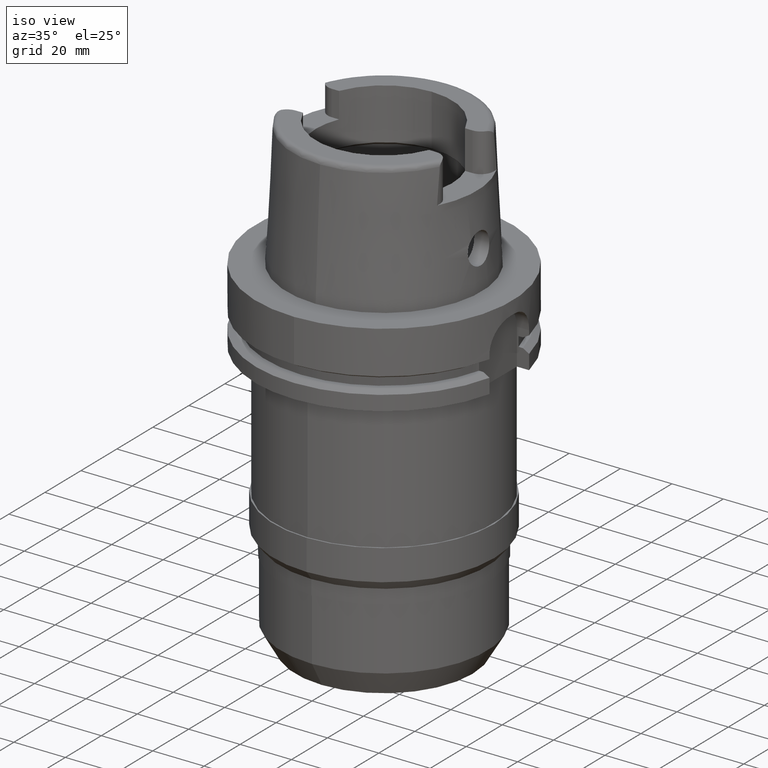
[diagram: clean part render]
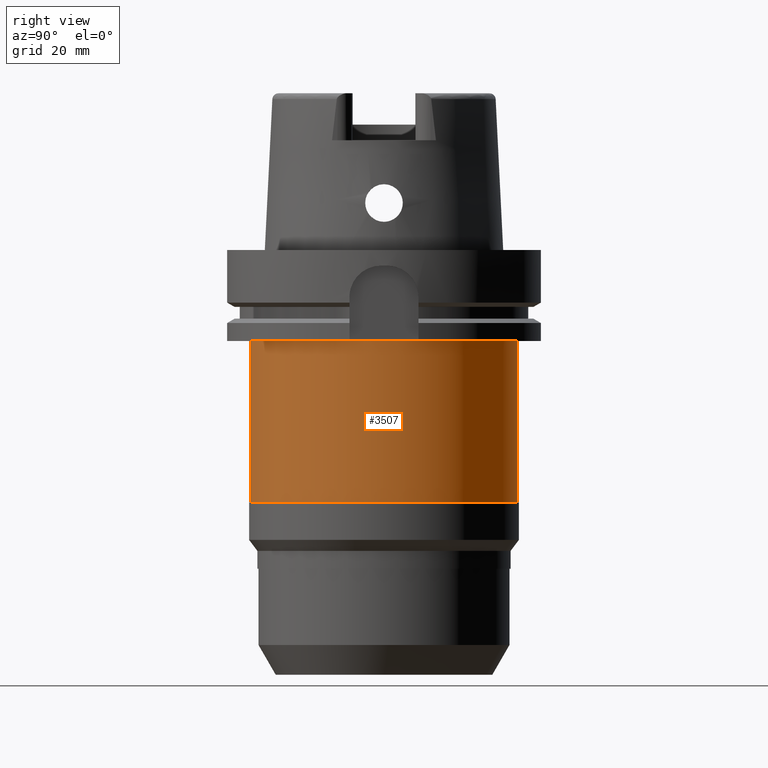
[diagram: tour spotlight — one face highlighted and labeled with its STEP entity id]
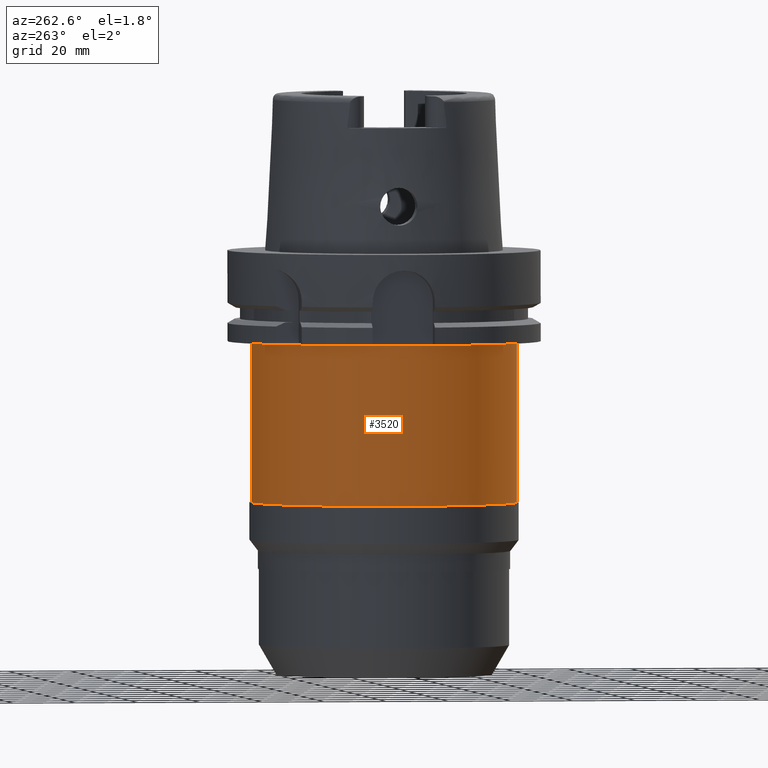
[diagram: tour spotlight — one face highlighted and labeled with its STEP entity id]
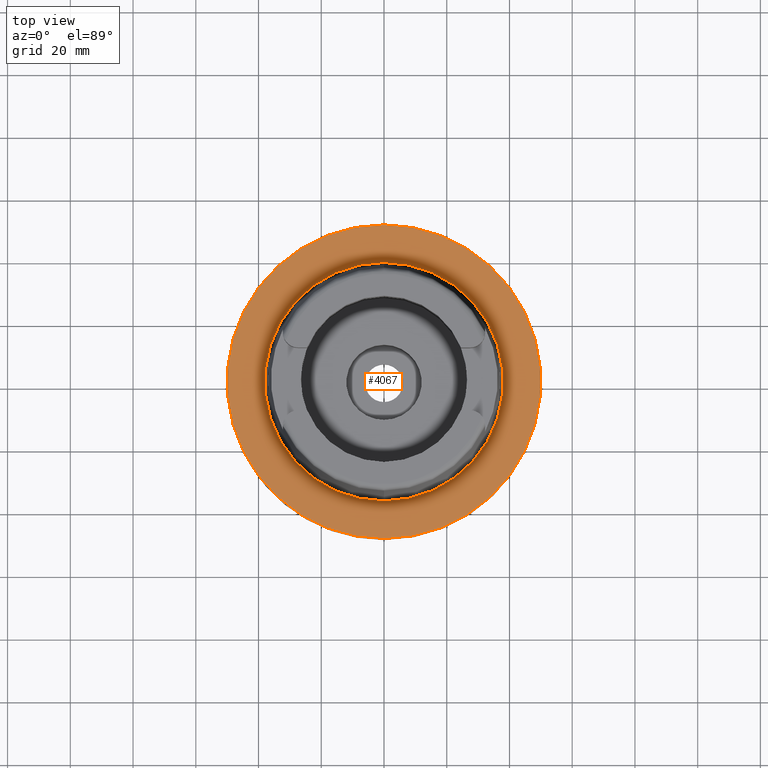
[diagram: tour spotlight — one face highlighted and labeled with its STEP entity id]
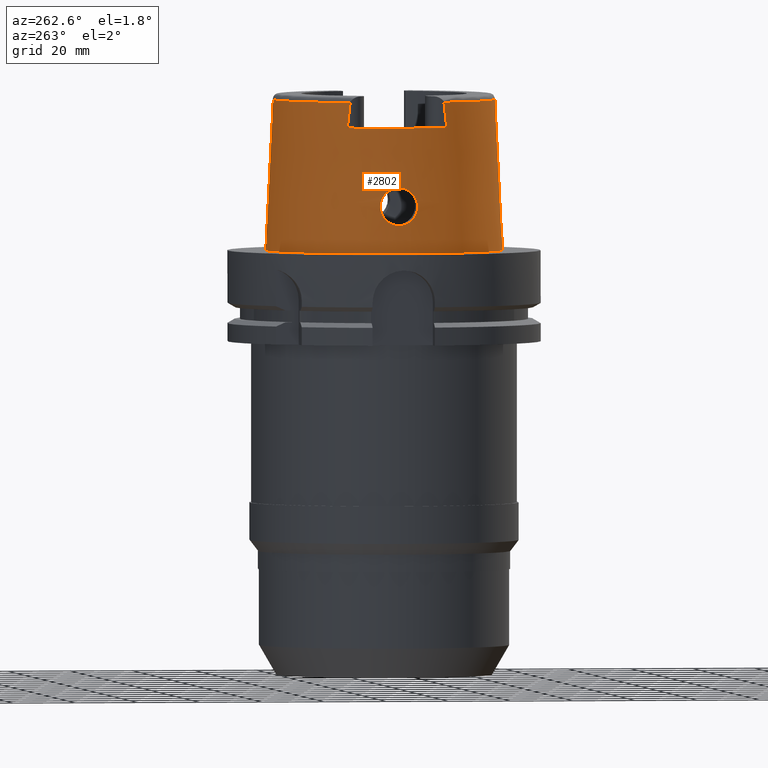
[diagram: tour spotlight — one face highlighted and labeled with its STEP entity id]
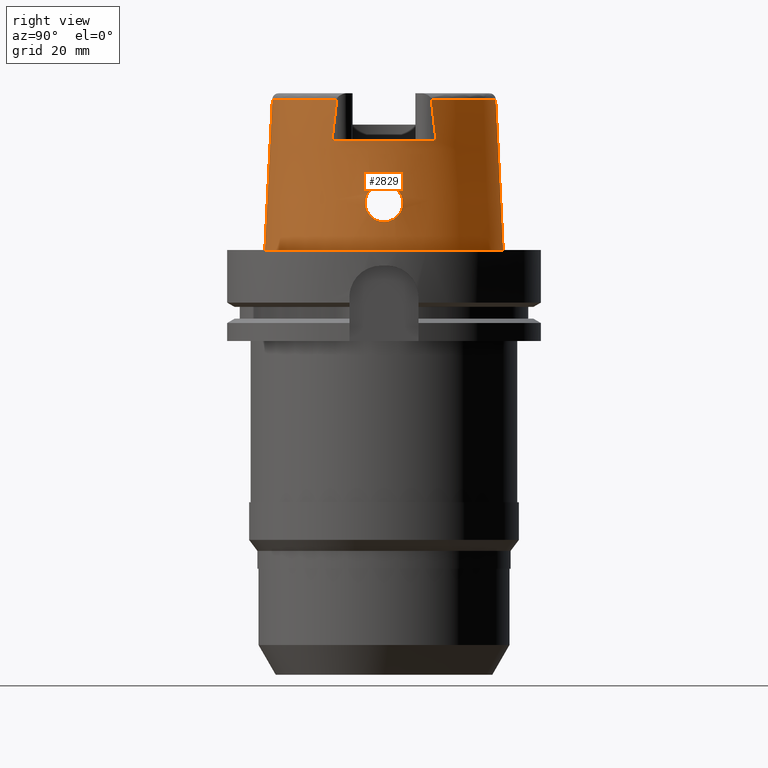
[diagram: tour spotlight — one face highlighted and labeled with its STEP entity id]
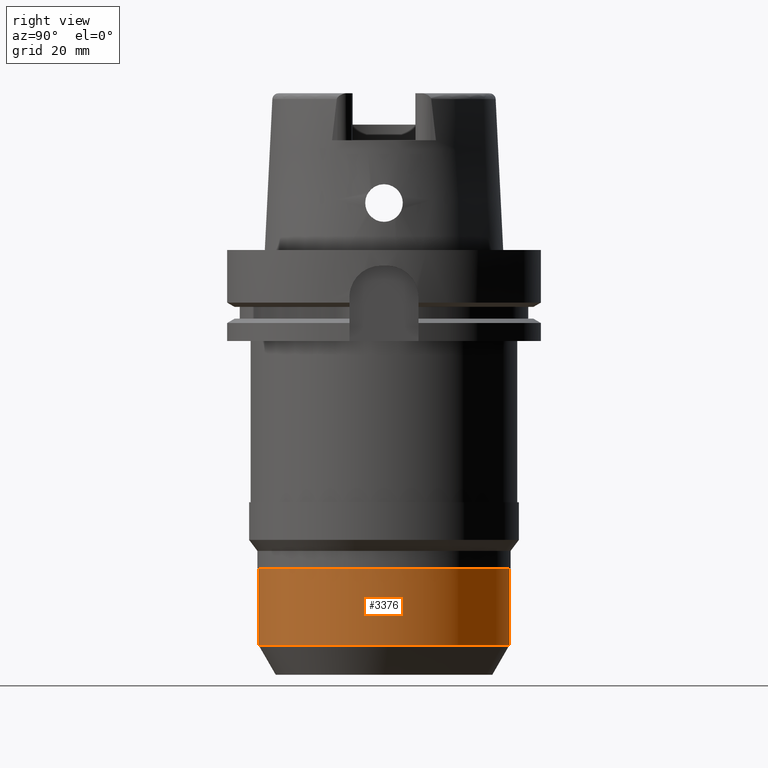
[diagram: tour spotlight — one face highlighted and labeled with its STEP entity id]
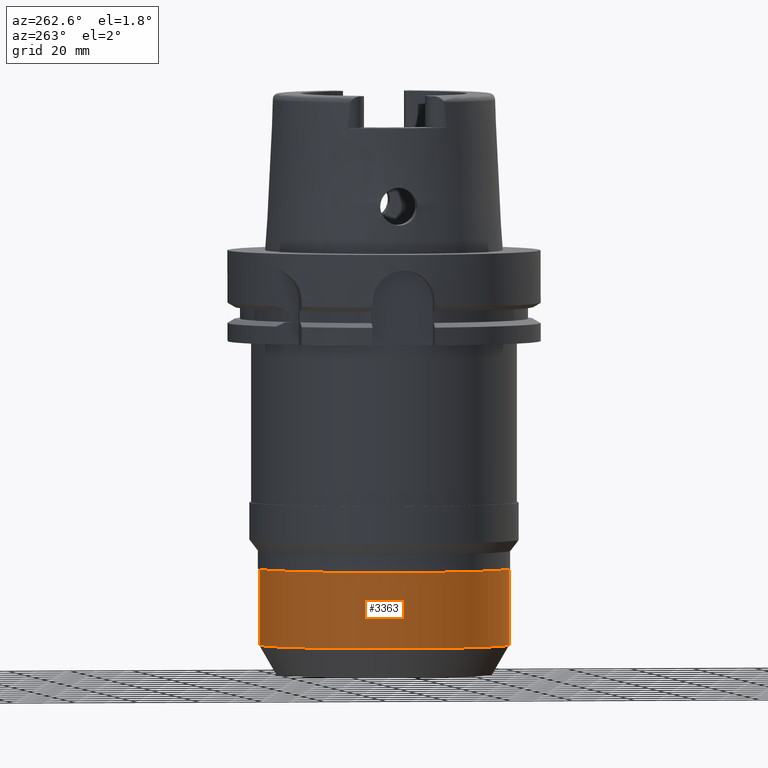
[diagram: tour spotlight — one face highlighted and labeled with its STEP entity id]
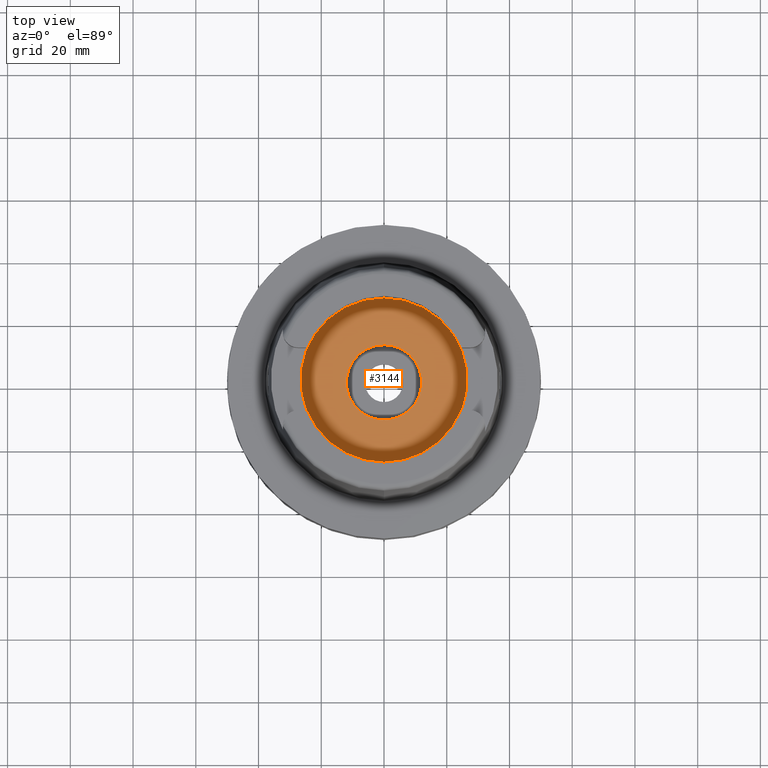
[diagram: tour spotlight — one face highlighted and labeled with its STEP entity id]
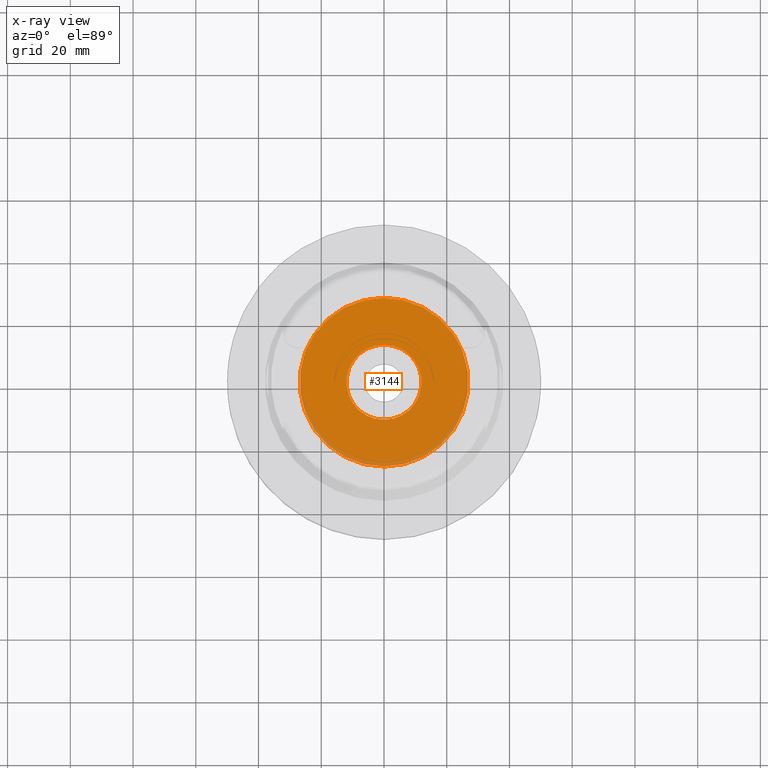
[diagram: x-ray of the same camera — body ghosted, this tour face saturated]
A machine part: a face-by-face anatomy tour. The part has 98 B-rep faces; the first image is the clean iso view, then the 8 largest visible faces are spotlighted one at a time (largest first), each with its STEP entity span.

Face 1 — right view, entity #3507. In plain terms, the highlighted cylindrical surface (partial cylindrical patch) has radius 42.5 mm, axis along (0, 0, 1).
Definition (entity closure, byte-faithful):
#1211=CARTESIAN_POINT('',(0.E0,0.E0,-8.04E1));
#1212=DIRECTION('',(0.E0,0.E0,1.E0));
#1213=DIRECTION('',(0.E0,-1.E0,0.E0));
#1214=AXIS2_PLACEMENT_3D('',#1211,#1212,#1213);
#1227=DIRECTION('',(0.E0,0.E0,-1.E0));
#1228=VECTOR('',#1227,5.14E1);
#1229=CARTESIAN_POINT('',(0.E0,4.25E1,-2.9E1));
#1230=LINE('',#1229,#1228);
#1234=DIRECTION('',(0.E0,0.E0,-1.E0));
#1235=VECTOR('',#1234,5.14E1);
#1236=CARTESIAN_POINT('',(0.E0,-4.25E1,-2.9E1));
#1237=LINE('',#1236,#1235);
#1310=CARTESIAN_POINT('',(0.E0,0.E0,-2.9E1));
#1311=DIRECTION('',(0.E0,0.E0,-1.E0));
#1312=DIRECTION('',(0.E0,1.E0,0.E0));
#1313=AXIS2_PLACEMENT_3D('',#1310,#1311,#1312);
#2442=CARTESIAN_POINT('',(0.E0,-4.25E1,-8.04E1));
#2443=CARTESIAN_POINT('',(0.E0,4.25E1,-8.04E1));
#2444=VERTEX_POINT('',#2442);
#2445=VERTEX_POINT('',#2443);
#2446=CARTESIAN_POINT('',(0.E0,4.25E1,-2.9E1));
#2447=VERTEX_POINT('',#2446);
#2448=CARTESIAN_POINT('',(0.E0,-4.25E1,-2.9E1));
#2449=VERTEX_POINT('',#2448);
#3493=CARTESIAN_POINT('',(0.E0,0.E0,-1.4467E2));
#3494=DIRECTION('',(0.E0,0.E0,1.E0));
#3495=DIRECTION('',(0.E0,1.E0,0.E0));
#3496=AXIS2_PLACEMENT_3D('',#3493,#3494,#3495);
#3497=CYLINDRICAL_SURFACE('',#3496,4.25E1);
#3499=ORIENTED_EDGE('',*,*,#3498,.T.);
#3500=ORIENTED_EDGE('',*,*,#3486,.F.);
#3502=ORIENTED_EDGE('',*,*,#3501,.F.);
#3504=ORIENTED_EDGE('',*,*,#3503,.F.);
#3505=EDGE_LOOP('',(#3499,#3500,#3502,#3504));
#3506=FACE_OUTER_BOUND('',#3505,.F.);
#1215=CIRCLE('',#1214,4.25E1);
#1314=CIRCLE('',#1313,4.25E1);
#3486=EDGE_CURVE('',#2444,#2445,#1215,.T.);
#3498=EDGE_CURVE('',#2447,#2445,#1230,.T.);
#3501=EDGE_CURVE('',#2449,#2444,#1237,.T.);
#3503=EDGE_CURVE('',#2447,#2449,#1314,.T.);
#3507=ADVANCED_FACE('',(#3506),#3497,.T.);

Face 2 — auxiliary view, entity #3520. In plain terms, the highlighted cylindrical surface (partial cylindrical patch) has radius 42.5 mm, axis along (0, 0, 1).
Definition (entity closure, byte-faithful):
#1219=CARTESIAN_POINT('',(0.E0,0.E0,-8.04E1));
#1220=DIRECTION('',(0.E0,0.E0,1.E0));
#1221=DIRECTION('',(0.E0,1.E0,0.E0));
#1222=AXIS2_PLACEMENT_3D('',#1219,#1220,#1221);
#1227=DIRECTION('',(0.E0,0.E0,-1.E0));
#1228=VECTOR('',#1227,5.14E1);
#1229=CARTESIAN_POINT('',(0.E0,4.25E1,-2.9E1));
#1230=LINE('',#1229,#1228);
#1234=DIRECTION('',(0.E0,0.E0,-1.E0));
#1235=VECTOR('',#1234,5.14E1);
#1236=CARTESIAN_POINT('',(0.E0,-4.25E1,-2.9E1));
#1237=LINE('',#1236,#1235);
#1302=CARTESIAN_POINT('',(0.E0,0.E0,-2.9E1));
#1303=DIRECTION('',(0.E0,0.E0,-1.E0));
#1304=DIRECTION('',(0.E0,-1.E0,0.E0));
#1305=AXIS2_PLACEMENT_3D('',#1302,#1303,#1304);
#2442=CARTESIAN_POINT('',(0.E0,-4.25E1,-8.04E1));
#2443=CARTESIAN_POINT('',(0.E0,4.25E1,-8.04E1));
#2444=VERTEX_POINT('',#2442);
#2445=VERTEX_POINT('',#2443);
#2446=CARTESIAN_POINT('',(0.E0,4.25E1,-2.9E1));
#2447=VERTEX_POINT('',#2446);
#2448=CARTESIAN_POINT('',(0.E0,-4.25E1,-2.9E1));
#2449=VERTEX_POINT('',#2448);
#3508=CARTESIAN_POINT('',(0.E0,0.E0,-1.4467E2));
#3509=DIRECTION('',(0.E0,0.E0,1.E0));
#3510=DIRECTION('',(0.E0,1.E0,0.E0));
#3511=AXIS2_PLACEMENT_3D('',#3508,#3509,#3510);
#3512=CYLINDRICAL_SURFACE('',#3511,4.25E1);
#3513=ORIENTED_EDGE('',*,*,#3498,.F.);
#3515=ORIENTED_EDGE('',*,*,#3514,.F.);
#3516=ORIENTED_EDGE('',*,*,#3501,.T.);
#3517=ORIENTED_EDGE('',*,*,#3488,.F.);
#3518=EDGE_LOOP('',(#3513,#3515,#3516,#3517));
#3519=FACE_OUTER_BOUND('',#3518,.F.);
#1223=CIRCLE('',#1222,4.25E1);
#1306=CIRCLE('',#1305,4.25E1);
#3488=EDGE_CURVE('',#2445,#2444,#1223,.T.);
#3498=EDGE_CURVE('',#2447,#2445,#1230,.T.);
#3501=EDGE_CURVE('',#2449,#2444,#1237,.T.);
#3514=EDGE_CURVE('',#2449,#2447,#1306,.T.);
#3520=ADVANCED_FACE('',(#3519),#3512,.T.);

Face 3 — top view, entity #4067. In plain terms, the highlighted planar face has unit normal (0, 0, 1).
Definition (entity closure, byte-faithful):
#2004=CARTESIAN_POINT('',(0.E0,0.E0,5.684341886081E-14));
#2005=DIRECTION('',(0.E0,0.E0,-1.E0));
#2006=DIRECTION('',(0.E0,-1.E0,0.E0));
#2007=AXIS2_PLACEMENT_3D('',#2004,#2005,#2006);
#2012=CARTESIAN_POINT('',(0.E0,0.E0,5.684341886081E-14));
#2013=DIRECTION('',(0.E0,0.E0,-1.E0));
#2014=DIRECTION('',(0.E0,1.E0,0.E0));
#2015=AXIS2_PLACEMENT_3D('',#2012,#2013,#2014);
#2020=CARTESIAN_POINT('',(0.E0,0.E0,1.023181539495E-12));
#2021=DIRECTION('',(0.E0,0.E0,1.E0));
#2022=DIRECTION('',(0.E0,-1.E0,0.E0));
#2023=AXIS2_PLACEMENT_3D('',#2020,#2021,#2022);
#2028=CARTESIAN_POINT('',(0.E0,0.E0,1.023181539495E-12));
#2029=DIRECTION('',(0.E0,0.E0,1.E0));
#2030=DIRECTION('',(0.E0,1.E0,0.E0));
#2031=AXIS2_PLACEMENT_3D('',#2028,#2029,#2030);
#2328=CARTESIAN_POINT('',(0.E0,-3.800001658252E1,6.821210263297E-13));
#2329=VERTEX_POINT('',#2328);
#2330=CARTESIAN_POINT('',(0.E0,3.800001658252E1,1.023181539495E-12));
#2331=VERTEX_POINT('',#2330);
#2577=CARTESIAN_POINT('',(0.E0,5.E1,3.789561257387E-14));
#2578=VERTEX_POINT('',#2577);
#2579=CARTESIAN_POINT('',(0.E0,-5.E1,5.684341886081E-14));
#2580=VERTEX_POINT('',#2579);
#4054=CARTESIAN_POINT('',(0.E0,0.E0,0.E0));
#4055=DIRECTION('',(0.E0,0.E0,1.E0));
#4056=DIRECTION('',(0.E0,1.E0,0.E0));
#4057=AXIS2_PLACEMENT_3D('',#4054,#4055,#4056);
#4058=PLANE('',#4057);
#4059=ORIENTED_EDGE('',*,*,#3819,.T.);
#4060=ORIENTED_EDGE('',*,*,#3928,.T.);
#4061=EDGE_LOOP('',(#4059,#4060));
#4062=FACE_OUTER_BOUND('',#4061,.F.);
#4063=ORIENTED_EDGE('',*,*,#2815,.T.);
#4064=ORIENTED_EDGE('',*,*,#2786,.T.);
#4065=EDGE_LOOP('',(#4063,#4064));
#4066=FACE_BOUND('',#4065,.F.);
#2008=CIRCLE('',#2007,5.E1);
#2016=CIRCLE('',#2015,5.E1);
#2024=CIRCLE('',#2023,3.800001658252E1);
#2032=CIRCLE('',#2031,3.800001658252E1);
#2786=EDGE_CURVE('',#2331,#2329,#2032,.T.);
#2815=EDGE_CURVE('',#2329,#2331,#2024,.T.);
#3819=EDGE_CURVE('',#2580,#2578,#2008,.T.);
#3928=EDGE_CURVE('',#2578,#2580,#2016,.T.);
#4067=ADVANCED_FACE('',(#4062,#4066),#4058,.T.);

Face 4 — auxiliary view, entity #2802. In plain terms, the highlighted conical surface has half-angle 2.862 deg.
Definition (entity closure, byte-faithful):
#130=CARTESIAN_POINT('',(0.E0,0.E0,4.E1));
#131=DIRECTION('',(0.E0,0.E0,-1.E0));
#132=DIRECTION('',(-8.958345712660E-1,-4.443876921391E-1,0.E0));
#133=AXIS2_PLACEMENT_3D('',#130,#131,#132);
#221=CARTESIAN_POINT('',(-3.224999491821E1,-1.506448481884E1,4.809973253239E1));
#281=CARTESIAN_POINT('',(0.E0,0.E0,4.809987853799E1));
#282=DIRECTION('',(0.E0,0.E0,-1.E0));
#283=DIRECTION('',(0.E0,-1.E0,0.E0));
#284=AXIS2_PLACEMENT_3D('',#281,#282,#283);
#289=CARTESIAN_POINT('',(-3.224999876012E1,-1.599794043148E1,4.E1));
#290=CARTESIAN_POINT('',(-3.224999876012E1,-1.589618560063E1,4.090434232027E1));
#291=CARTESIAN_POINT('',(-3.224999990104E1,-1.569149929398E1,4.271014757857E1));
#292=CARTESIAN_POINT('',(-3.225000220619E1,-1.538028254752E1,4.541006267771E1));
#293=CARTESIAN_POINT('',(-3.224999491821E1,-1.517027180891E1,4.720433975298E1));
#294=CARTESIAN_POINT('',(-3.224999491821E1,-1.506448481884E1,4.809973253239E1));
#299=DIRECTION('',(5.154182075151E-5,-4.993927430816E-2,-9.987522546783E-1));
#300=VECTOR('',#299,4.815996991514E1);
#301=CARTESIAN_POINT('',(-2.482252536761E-3,-3.559494263425E1,
4.809987853799E1));
#302=LINE('',#301,#300);
#306=CARTESIAN_POINT('',(-3.225000136841E1,1.506443227625E1,4.809991927071E1));
#307=CARTESIAN_POINT('',(-3.225000136841E1,1.517024629210E1,4.720430020500E1));
#308=CARTESIAN_POINT('',(-3.225000007421E1,1.538032523510E1,4.541024585212E1));
#309=CARTESIAN_POINT('',(-3.224999768767E1,1.569154926938E1,4.271027466542E1));
#310=CARTESIAN_POINT('',(-3.225000534596E1,1.589614940559E1,4.090439636549E1));
#311=CARTESIAN_POINT('',(-3.225000534596E1,1.599791057085E1,4.E1));
#326=DIRECTION('',(-5.154182075159E-5,4.993927430816E-2,-9.987522546783E-1));
#327=VECTOR('',#326,4.815996991514E1);
#328=CARTESIAN_POINT('',(2.482252536765E-3,3.559494263425E1,4.809987853799E1));
#329=LINE('',#328,#327);
#516=CARTESIAN_POINT('',(-3.694998175923E1,0.E0,2.1E1));
#517=CARTESIAN_POINT('',(-3.694998175923E1,-5.225398499482E-1,2.1E1));
#518=CARTESIAN_POINT('',(-3.693416250018E1,-1.569029661112E0,2.086257362447E1));
#519=CARTESIAN_POINT('',(-3.687106042448E1,-3.034938241473E0,2.025623277070E1));
#520=CARTESIAN_POINT('',(-3.679112894874E1,-4.298698066444E0,1.928508965179E1));
#521=CARTESIAN_POINT('',(-3.672630142240E1,-5.263965514425E0,1.802134447765E1));
#522=CARTESIAN_POINT('',(-3.670712147315E1,-5.866239162160E0,1.655330692640E1));
#523=CARTESIAN_POINT('',(-3.675256892539E1,-6.067444960183E0,1.499650765739E1));
#524=CARTESIAN_POINT('',(-3.686529326060E1,-5.863974189866E0,1.343852375859E1));
#525=CARTESIAN_POINT('',(-3.703208720669E1,-5.261692537727E0,1.197570377690E1));
#526=CARTESIAN_POINT('',(-3.722277666817E1,-4.297897797341E0,1.071372714411E1));
#527=CARTESIAN_POINT('',(-3.739925208220E1,-3.028308331471E0,9.739317529555E0));
#528=CARTESIAN_POINT('',(-3.752128853465E1,-1.559594032826E0,9.135204678350E0));
#529=CARTESIAN_POINT('',(-3.755000165825E1,-5.184530683877E-1,9.E0));
#530=CARTESIAN_POINT('',(-3.755000165825E1,1.432651546991E-13,9.E0));
#580=CARTESIAN_POINT('',(-3.755000165825E1,1.432651546991E-13,9.E0));
#581=CARTESIAN_POINT('',(-3.755000165825E1,5.180202103121E-1,9.E0));
#582=CARTESIAN_POINT('',(-3.752124630770E1,1.555106469823E0,9.135475008237E0));
#583=CARTESIAN_POINT('',(-3.740163330392E1,3.003590780042E0,9.727458726891E0));
#584=CARTESIAN_POINT('',(-3.722783755013E1,4.267307921474E0,1.068410697472E1));
#585=CARTESIAN_POINT('',(-3.703667279641E1,5.242673960881E0,1.194069111430E1));
#586=CARTESIAN_POINT('',(-3.686694455688E1,5.860427761543E0,1.341787128873E1));
#587=CARTESIAN_POINT('',(-3.675237396667E1,6.068846924428E0,1.499565303832E1));
#588=CARTESIAN_POINT('',(-3.670702226928E1,5.864165175203E0,1.656217598077E1));
#589=CARTESIAN_POINT('',(-3.672655763727E1,5.260521698030E0,1.802560333629E1));
#590=CARTESIAN_POINT('',(-3.679084468674E1,4.302597983396E0,1.927998324501E1));
#591=CARTESIAN_POINT('',(-3.687057612775E1,3.043782413494E0,2.025131950728E1));
#592=CARTESIAN_POINT('',(-3.693406400300E1,1.573947069146E0,2.086176170221E1));
#593=CARTESIAN_POINT('',(-3.694998175923E1,5.244482169920E-1,2.1E1));
#594=CARTESIAN_POINT('',(-3.694998175923E1,0.E0,2.1E1));
#2028=CARTESIAN_POINT('',(0.E0,0.E0,1.023181539495E-12));
#2029=DIRECTION('',(0.E0,0.E0,1.E0));
#2030=DIRECTION('',(0.E0,1.E0,0.E0));
#2031=AXIS2_PLACEMENT_3D('',#2028,#2029,#2030);
#2219=CARTESIAN_POINT('',(-3.225000136841E1,1.506443227625E1,4.809991927071E1));
#2224=CARTESIAN_POINT('',(0.E0,0.E0,4.809987853799E1));
#2225=DIRECTION('',(0.E0,0.E0,-1.E0));
#2226=DIRECTION('',(-9.060276961631E-1,4.232183996300E-1,0.E0));
#2227=AXIS2_PLACEMENT_3D('',#2224,#2225,#2226);
#2312=CARTESIAN_POINT('',(-3.224999876012E1,-1.599794043148E1,4.E1));
#2313=VERTEX_POINT('',#2312);
#2314=CARTESIAN_POINT('',(-3.224999999999E1,1.599793480981E1,4.E1));
#2315=VERTEX_POINT('',#2314);
#2317=VERTEX_POINT('',#2219);
#2318=CARTESIAN_POINT('',(0.E0,3.559494289391E1,4.809987853799E1));
#2319=VERTEX_POINT('',#2318);
#2323=VERTEX_POINT('',#221);
#2326=CARTESIAN_POINT('',(1.065814103640E-14,-3.559494289391E1,
4.809987853799E1));
#2327=VERTEX_POINT('',#2326);
#2328=CARTESIAN_POINT('',(0.E0,-3.800001658252E1,6.821210263297E-13));
#2329=VERTEX_POINT('',#2328);
#2330=CARTESIAN_POINT('',(0.E0,3.800001658252E1,1.023181539495E-12));
#2331=VERTEX_POINT('',#2330);
#2332=VERTEX_POINT('',#516);
#2333=VERTEX_POINT('',#530);
#2776=CARTESIAN_POINT('',(0.E0,0.E0,2.404993926900E1));
#2777=DIRECTION('',(0.E0,0.E0,-1.E0));
#2778=DIRECTION('',(0.E0,-1.E0,0.E0));
#2779=AXIS2_PLACEMENT_3D('',#2776,#2777,#2778);
#2780=CONICAL_SURFACE('',#2779,3.679747973821E1,2.8625E0);
#2781=ORIENTED_EDGE('',*,*,#2685,.F.);
#2782=ORIENTED_EDGE('',*,*,#2768,.T.);
#2783=ORIENTED_EDGE('',*,*,#2758,.F.);
#2785=ORIENTED_EDGE('',*,*,#2784,.T.);
#2787=ORIENTED_EDGE('',*,*,#2786,.F.);
#2789=ORIENTED_EDGE('',*,*,#2788,.F.);
#2791=ORIENTED_EDGE('',*,*,#2790,.F.);
#2793=ORIENTED_EDGE('',*,*,#2792,.T.);
#2794=EDGE_LOOP('',(#2781,#2782,#2783,#2785,#2787,#2789,#2791,#2793));
#2795=FACE_OUTER_BOUND('',#2794,.F.);
#2797=ORIENTED_EDGE('',*,*,#2796,.F.);
#2799=ORIENTED_EDGE('',*,*,#2798,.F.);
#2800=EDGE_LOOP('',(#2797,#2799));
#2801=FACE_BOUND('',#2800,.F.);
#134=CIRCLE('',#133,3.599995025244E1);
#285=CIRCLE('',#284,3.559494289391E1);
#295=B_SPLINE_CURVE_WITH_KNOTS('',3,(#289,#290,#291,#292,#293,#294),
.UNSPECIFIED.,.F.,.F.,(4,1,1,4),(0.E0,3.333333333333E-1,6.666666666667E-1,1.E0),
.UNSPECIFIED.);
#312=B_SPLINE_CURVE_WITH_KNOTS('',3,(#306,#307,#308,#309,#310,#311),
.UNSPECIFIED.,.F.,.F.,(4,1,1,4),(0.E0,3.333333333333E-1,6.666666666667E-1,1.E0),
.UNSPECIFIED.);
#531=B_SPLINE_CURVE_WITH_KNOTS('',3,(#516,#517,#518,#519,#520,#521,#522,#523,
#524,#525,#526,#527,#528,#529,#530),.UNSPECIFIED.,.F.,.F.,(4,1,1,1,1,1,1,1,1,1,
1,1,4),(0.E0,8.333333333333E-2,1.666666666667E-1,2.5E-1,3.333333333333E-1,
4.166666666667E-1,5.E-1,5.833333333333E-1,6.666666666667E-1,7.5E-1,
8.333333333333E-1,9.166666666667E-1,1.E0),.UNSPECIFIED.);
#595=B_SPLINE_CURVE_WITH_KNOTS('',3,(#580,#581,#582,#583,#584,#585,#586,#587,
#588,#589,#590,#591,#592,#593,#594),.UNSPECIFIED.,.F.,.F.,(4,1,1,1,1,1,1,1,1,1,
1,1,4),(0.E0,8.333333333333E-2,1.666666666667E-1,2.5E-1,3.333333333333E-1,
4.166666666667E-1,5.E-1,5.833333333333E-1,6.666666666667E-1,7.5E-1,
8.333333333333E-1,9.166666666667E-1,1.E0),.UNSPECIFIED.);
#2032=CIRCLE('',#2031,3.800001658252E1);
#2228=CIRCLE('',#2227,3.559494289391E1);
#2685=EDGE_CURVE('',#2313,#2315,#134,.T.);
#2758=EDGE_CURVE('',#2327,#2323,#285,.T.);
#2768=EDGE_CURVE('',#2313,#2323,#295,.T.);
#2784=EDGE_CURVE('',#2327,#2329,#302,.T.);
#2786=EDGE_CURVE('',#2331,#2329,#2032,.T.);
#2788=EDGE_CURVE('',#2319,#2331,#329,.T.);
#2790=EDGE_CURVE('',#2317,#2319,#2228,.T.);
#2792=EDGE_CURVE('',#2317,#2315,#312,.T.);
#2796=EDGE_CURVE('',#2332,#2333,#531,.T.);
#2798=EDGE_CURVE('',#2333,#2332,#595,.T.);
#2802=ADVANCED_FACE('',(#2795,#2801),#2780,.T.);

Face 5 — right view, entity #2829. In plain terms, the highlighted conical surface has half-angle 2.862 deg.
Definition (entity closure, byte-faithful):
#268=CARTESIAN_POINT('',(3.225000552017E1,-1.506439828318E1,4.810004174833E1));
#273=CARTESIAN_POINT('',(0.E0,0.E0,4.809987853799E1));
#274=DIRECTION('',(0.E0,0.E0,-1.E0));
#275=DIRECTION('',(9.060280460805E-1,-4.232176505246E-1,0.E0));
#276=AXIS2_PLACEMENT_3D('',#273,#274,#275);
#299=DIRECTION('',(5.154182075151E-5,-4.993927430816E-2,-9.987522546783E-1));
#300=VECTOR('',#299,4.815996991514E1);
#301=CARTESIAN_POINT('',(-2.482252536761E-3,-3.559494263425E1,
4.809987853799E1));
#302=LINE('',#301,#300);
#316=CARTESIAN_POINT('',(3.224999527489E1,1.655287543599E1,3.5E1));
#317=CARTESIAN_POINT('',(3.224999527489E1,1.639226210430E1,3.646677430492E1));
#318=CARTESIAN_POINT('',(3.224999958003E1,1.606837255483E1,3.939292736552E1));
#319=CARTESIAN_POINT('',(3.225000855756E1,1.557203229454E1,4.375938269618E1));
#320=CARTESIAN_POINT('',(3.224998031234E1,1.523513271605E1,4.665592204274E1));
#321=CARTESIAN_POINT('',(3.224998031234E1,1.506460259131E1,4.809931685952E1));
#326=DIRECTION('',(-5.154182075159E-5,4.993927430816E-2,-9.987522546783E-1));
#327=VECTOR('',#326,4.815996991514E1);
#328=CARTESIAN_POINT('',(2.482252536765E-3,3.559494263425E1,4.809987853799E1));
#329=LINE('',#328,#327);
#333=CARTESIAN_POINT('',(3.225000552017E1,-1.506439828318E1,4.810004174833E1));
#334=CARTESIAN_POINT('',(3.225000552017E1,-1.523503289114E1,4.665577808986E1));
#335=CARTESIAN_POINT('',(3.225000026293E1,-1.557219472918E1,4.376011578362E1));
#336=CARTESIAN_POINT('',(3.224999079948E1,-1.606856473524E1,3.939344260642E1));
#337=CARTESIAN_POINT('',(3.225002129259E1,-1.639212166417E1,3.646699412941E1));
#338=CARTESIAN_POINT('',(3.225002129259E1,-1.655276054267E1,3.5E1));
#373=CARTESIAN_POINT('',(0.E0,0.E0,3.5E1));
#374=DIRECTION('',(0.E0,0.E0,-1.E0));
#375=DIRECTION('',(8.896561898443E-1,4.566309931135E-1,0.E0));
#376=AXIS2_PLACEMENT_3D('',#373,#374,#375);
#705=CARTESIAN_POINT('',(3.755000165825E1,0.E0,9.E0));
#706=CARTESIAN_POINT('',(3.755000165825E1,-5.180213084630E-1,9.E0));
#707=CARTESIAN_POINT('',(3.752124622723E1,-1.555109018416E0,9.135475354600E0));
#708=CARTESIAN_POINT('',(3.740163271878E1,-3.003595830033E0,9.727461654073E0));
#709=CARTESIAN_POINT('',(3.722783759990E1,-4.267306971764E0,1.068410735373E1));
#710=CARTESIAN_POINT('',(3.703667271046E1,-5.242675637989E0,1.194068956731E1));
#711=CARTESIAN_POINT('',(3.686694091571E1,-5.860439360591E0,1.341790686287E1));
#712=CARTESIAN_POINT('',(3.675237178991E1,-6.068847754447E0,1.499569324434E1));
#713=CARTESIAN_POINT('',(3.670702217856E1,-5.864150509020E0,1.656222424645E1));
#714=CARTESIAN_POINT('',(3.672655814592E1,-5.260516156326E0,1.802560788772E1));
#715=CARTESIAN_POINT('',(3.679084500427E1,-4.302592843405E0,1.927998977200E1));
#716=CARTESIAN_POINT('',(3.687057671111E1,-3.043772243406E0,2.025132528789E1));
#717=CARTESIAN_POINT('',(3.693406420562E1,-1.573938661758E0,2.086176348116E1));
#718=CARTESIAN_POINT('',(3.694998175923E1,-5.244448153038E-1,2.1E1));
#719=CARTESIAN_POINT('',(3.694998175923E1,-1.394597051989E-13,2.1E1));
#756=CARTESIAN_POINT('',(3.694998175923E1,-1.394597051989E-13,2.1E1));
#757=CARTESIAN_POINT('',(3.694998175923E1,5.225434259279E-1,2.1E1));
#758=CARTESIAN_POINT('',(3.693416228278E1,1.569037724502E0,2.086257169919E1));
#759=CARTESIAN_POINT('',(3.687106004137E1,3.034944261920E0,2.025622890539E1));
#760=CARTESIAN_POINT('',(3.679112909247E1,4.298696467354E0,1.928508939272E1));
#761=CARTESIAN_POINT('',(3.672630131470E1,5.263964540677E0,1.802135073292E1));
#762=CARTESIAN_POINT('',(3.670712144943E1,5.866250313115E0,1.655327231086E1));
#763=CARTESIAN_POINT('',(3.675257056544E1,6.067445157432E0,1.499647465649E1));
#764=CARTESIAN_POINT('',(3.686529727491E1,5.863962121524E0,1.343848257416E1));
#765=CARTESIAN_POINT('',(3.703208843402E1,5.261686038850E0,1.197569681060E1));
#766=CARTESIAN_POINT('',(3.722277764996E1,4.297892469189E0,1.071372072946E1));
#767=CARTESIAN_POINT('',(3.739925323309E1,3.028297802197E0,9.739311736093E0));
#768=CARTESIAN_POINT('',(3.752128870687E1,1.559588781423E0,9.135203908409E0));
#769=CARTESIAN_POINT('',(3.755000165825E1,5.184510928059E-1,9.E0));
#770=CARTESIAN_POINT('',(3.755000165825E1,0.E0,9.E0));
#2020=CARTESIAN_POINT('',(0.E0,0.E0,1.023181539495E-12));
#2021=DIRECTION('',(0.E0,0.E0,1.E0));
#2022=DIRECTION('',(0.E0,-1.E0,0.E0));
#2023=AXIS2_PLACEMENT_3D('',#2020,#2021,#2022);
#2232=CARTESIAN_POINT('',(0.E0,0.E0,4.809987853799E1));
#2233=DIRECTION('',(0.E0,0.E0,-1.E0));
#2234=DIRECTION('',(0.E0,1.E0,0.E0));
#2235=AXIS2_PLACEMENT_3D('',#2232,#2233,#2234);
#2318=CARTESIAN_POINT('',(0.E0,3.559494289391E1,4.809987853799E1));
#2319=VERTEX_POINT('',#2318);
#2320=CARTESIAN_POINT('',(3.224994093704E1,1.506456999646E1,4.809987853799E1));
#2321=VERTEX_POINT('',#2320);
#2325=VERTEX_POINT('',#268);
#2326=CARTESIAN_POINT('',(1.065814103640E-14,-3.559494289391E1,
4.809987853799E1));
#2327=VERTEX_POINT('',#2326);
#2328=CARTESIAN_POINT('',(0.E0,-3.800001658252E1,6.821210263297E-13));
#2329=VERTEX_POINT('',#2328);
#2330=CARTESIAN_POINT('',(0.E0,3.800001658252E1,1.023181539495E-12));
#2331=VERTEX_POINT('',#2330);
#2334=CARTESIAN_POINT('',(3.225E1,1.655285457013E1,3.5E1));
#2335=CARTESIAN_POINT('',(3.225E1,-1.655285457013E1,3.5E1));
#2336=VERTEX_POINT('',#2334);
#2337=VERTEX_POINT('',#2335);
#2338=VERTEX_POINT('',#705);
#2339=VERTEX_POINT('',#719);
#2803=CARTESIAN_POINT('',(0.E0,0.E0,2.404993926900E1));
#2804=DIRECTION('',(0.E0,0.E0,-1.E0));
#2805=DIRECTION('',(0.E0,-1.E0,0.E0));
#2806=AXIS2_PLACEMENT_3D('',#2803,#2804,#2805);
#2807=CONICAL_SURFACE('',#2806,3.679747973821E1,2.8625E0);
#2809=ORIENTED_EDGE('',*,*,#2808,.F.);
#2811=ORIENTED_EDGE('',*,*,#2810,.T.);
#2813=ORIENTED_EDGE('',*,*,#2812,.F.);
#2814=ORIENTED_EDGE('',*,*,#2788,.T.);
#2816=ORIENTED_EDGE('',*,*,#2815,.F.);
#2817=ORIENTED_EDGE('',*,*,#2784,.F.);
#2818=ORIENTED_EDGE('',*,*,#2756,.F.);
#2820=ORIENTED_EDGE('',*,*,#2819,.T.);
#2821=EDGE_LOOP('',(#2809,#2811,#2813,#2814,#2816,#2817,#2818,#2820));
#2822=FACE_OUTER_BOUND('',#2821,.F.);
#2824=ORIENTED_EDGE('',*,*,#2823,.F.);
#2826=ORIENTED_EDGE('',*,*,#2825,.F.);
#2827=EDGE_LOOP('',(#2824,#2826));
#2828=FACE_BOUND('',#2827,.F.);
#277=CIRCLE('',#276,3.559494289391E1);
#322=B_SPLINE_CURVE_WITH_KNOTS('',3,(#316,#317,#318,#319,#320,#321),
.UNSPECIFIED.,.F.,.F.,(4,1,1,4),(0.E0,3.333333333333E-1,6.666666666667E-1,1.E0),
.UNSPECIFIED.);
#339=B_SPLINE_CURVE_WITH_KNOTS('',3,(#333,#334,#335,#336,#337,#338),
.UNSPECIFIED.,.F.,.F.,(4,1,1,4),(0.E0,3.333333333333E-1,6.666666666667E-1,1.E0),
.UNSPECIFIED.);
#377=CIRCLE('',#376,3.624995854370E1);
#720=B_SPLINE_CURVE_WITH_KNOTS('',3,(#705,#706,#707,#708,#709,#710,#711,#712,
#713,#714,#715,#716,#717,#718,#719),.UNSPECIFIED.,.F.,.F.,(4,1,1,1,1,1,1,1,1,1,
1,1,4),(0.E0,8.333333333333E-2,1.666666666667E-1,2.5E-1,3.333333333333E-1,
4.166666666667E-1,5.E-1,5.833333333333E-1,6.666666666667E-1,7.5E-1,
8.333333333333E-1,9.166666666667E-1,1.E0),.UNSPECIFIED.);
#771=B_SPLINE_CURVE_WITH_KNOTS('',3,(#756,#757,#758,#759,#760,#761,#762,#763,
#764,#765,#766,#767,#768,#769,#770),.UNSPECIFIED.,.F.,.F.,(4,1,1,1,1,1,1,1,1,1,
1,1,4),(0.E0,8.333333333333E-2,1.666666666667E-1,2.5E-1,3.333333333333E-1,
4.166666666667E-1,5.E-1,5.833333333333E-1,6.666666666667E-1,7.5E-1,
8.333333333333E-1,9.166666666667E-1,1.E0),.UNSPECIFIED.);
#2024=CIRCLE('',#2023,3.800001658252E1);
#2236=CIRCLE('',#2235,3.559494289391E1);
#2756=EDGE_CURVE('',#2325,#2327,#277,.T.);
#2784=EDGE_CURVE('',#2327,#2329,#302,.T.);
#2788=EDGE_CURVE('',#2319,#2331,#329,.T.);
#2808=EDGE_CURVE('',#2336,#2337,#377,.T.);
#2810=EDGE_CURVE('',#2336,#2321,#322,.T.);
#2812=EDGE_CURVE('',#2319,#2321,#2236,.T.);
#2815=EDGE_CURVE('',#2329,#2331,#2024,.T.);
#2819=EDGE_CURVE('',#2325,#2337,#339,.T.);
#2823=EDGE_CURVE('',#2338,#2339,#720,.T.);
#2825=EDGE_CURVE('',#2339,#2338,#771,.T.);
#2829=ADVANCED_FACE('',(#2822,#2828),#2807,.T.);

Face 6 — right view, entity #3376. In plain terms, the highlighted cylindrical surface (partial cylindrical patch) has radius 40 mm, axis along (0, 0, 1).
Definition (entity closure, byte-faithful):
#1052=CARTESIAN_POINT('',(0.E0,0.E0,-1.259E2));
#1053=DIRECTION('',(0.E0,0.E0,1.E0));
#1054=DIRECTION('',(0.E0,-1.E0,0.E0));
#1055=AXIS2_PLACEMENT_3D('',#1052,#1053,#1054);
#1075=DIRECTION('',(0.E0,-1.052655904830E-14,-1.E0));
#1076=VECTOR('',#1075,2.43E1);
#1077=CARTESIAN_POINT('',(0.E0,-4.E1,-1.016E2));
#1078=LINE('',#1077,#1076);
#1082=DIRECTION('',(0.E0,1.052655904830E-14,-1.E0));
#1083=VECTOR('',#1082,2.43E1);
#1084=CARTESIAN_POINT('',(0.E0,4.E1,-1.016E2));
#1085=LINE('',#1084,#1083);
#1113=CARTESIAN_POINT('',(0.E0,0.E0,-1.016E2));
#1114=DIRECTION('',(0.E0,0.E0,-1.E0));
#1115=DIRECTION('',(0.E0,1.E0,0.E0));
#1116=AXIS2_PLACEMENT_3D('',#1113,#1114,#1115);
#2418=CARTESIAN_POINT('',(0.E0,4.E1,-1.259E2));
#2419=VERTEX_POINT('',#2418);
#2420=CARTESIAN_POINT('',(0.E0,-4.E1,-1.259E2));
#2421=VERTEX_POINT('',#2420);
#2422=CARTESIAN_POINT('',(0.E0,4.E1,-1.016E2));
#2423=VERTEX_POINT('',#2422);
#2424=CARTESIAN_POINT('',(0.E0,-4.E1,-1.016E2));
#2425=VERTEX_POINT('',#2424);
#3364=CARTESIAN_POINT('',(0.E0,0.E0,-1.4467E2));
#3365=DIRECTION('',(0.E0,0.E0,1.E0));
#3366=DIRECTION('',(0.E0,1.E0,0.E0));
#3367=AXIS2_PLACEMENT_3D('',#3364,#3365,#3366);
#3368=CYLINDRICAL_SURFACE('',#3367,4.E1);
#3369=ORIENTED_EDGE('',*,*,#3354,.T.);
#3370=ORIENTED_EDGE('',*,*,#3331,.F.);
#3371=ORIENTED_EDGE('',*,*,#3358,.F.);
#3373=ORIENTED_EDGE('',*,*,#3372,.F.);
#3374=EDGE_LOOP('',(#3369,#3370,#3371,#3373));
#3375=FACE_OUTER_BOUND('',#3374,.F.);
#1056=CIRCLE('',#1055,4.E1);
#1117=CIRCLE('',#1116,4.E1);
#3331=EDGE_CURVE('',#2421,#2419,#1056,.T.);
#3354=EDGE_CURVE('',#2423,#2419,#1085,.T.);
#3358=EDGE_CURVE('',#2425,#2421,#1078,.T.);
#3372=EDGE_CURVE('',#2423,#2425,#1117,.T.);
#3376=ADVANCED_FACE('',(#3375),#3368,.T.);

Face 7 — auxiliary view, entity #3363. In plain terms, the highlighted cylindrical surface (partial cylindrical patch) has radius 40 mm, axis along (0, 0, 1).
Definition (entity closure, byte-faithful):
#1060=CARTESIAN_POINT('',(0.E0,0.E0,-1.259E2));
#1061=DIRECTION('',(0.E0,0.E0,1.E0));
#1062=DIRECTION('',(0.E0,1.E0,0.E0));
#1063=AXIS2_PLACEMENT_3D('',#1060,#1061,#1062);
#1075=DIRECTION('',(0.E0,-1.052655904830E-14,-1.E0));
#1076=VECTOR('',#1075,2.43E1);
#1077=CARTESIAN_POINT('',(0.E0,-4.E1,-1.016E2));
#1078=LINE('',#1077,#1076);
#1082=DIRECTION('',(0.E0,1.052655904830E-14,-1.E0));
#1083=VECTOR('',#1082,2.43E1);
#1084=CARTESIAN_POINT('',(0.E0,4.E1,-1.016E2));
#1085=LINE('',#1084,#1083);
#1105=CARTESIAN_POINT('',(0.E0,0.E0,-1.016E2));
#1106=DIRECTION('',(0.E0,0.E0,-1.E0));
#1107=DIRECTION('',(0.E0,-1.E0,0.E0));
#1108=AXIS2_PLACEMENT_3D('',#1105,#1106,#1107);
#2418=CARTESIAN_POINT('',(0.E0,4.E1,-1.259E2));
#2419=VERTEX_POINT('',#2418);
#2420=CARTESIAN_POINT('',(0.E0,-4.E1,-1.259E2));
#2421=VERTEX_POINT('',#2420);
#2422=CARTESIAN_POINT('',(0.E0,4.E1,-1.016E2));
#2423=VERTEX_POINT('',#2422);
#2424=CARTESIAN_POINT('',(0.E0,-4.E1,-1.016E2));
#2425=VERTEX_POINT('',#2424);
#3349=CARTESIAN_POINT('',(0.E0,0.E0,-1.4467E2));
#3350=DIRECTION('',(0.E0,0.E0,1.E0));
#3351=DIRECTION('',(0.E0,1.E0,0.E0));
#3352=AXIS2_PLACEMENT_3D('',#3349,#3350,#3351);
#3353=CYLINDRICAL_SURFACE('',#3352,4.E1);
#3355=ORIENTED_EDGE('',*,*,#3354,.F.);
#3357=ORIENTED_EDGE('',*,*,#3356,.F.);
#3359=ORIENTED_EDGE('',*,*,#3358,.T.);
#3360=ORIENTED_EDGE('',*,*,#3342,.F.);
#3361=EDGE_LOOP('',(#3355,#3357,#3359,#3360));
#3362=FACE_OUTER_BOUND('',#3361,.F.);
#1064=CIRCLE('',#1063,4.E1);
#1109=CIRCLE('',#1108,4.E1);
#3342=EDGE_CURVE('',#2419,#2421,#1064,.T.);
#3354=EDGE_CURVE('',#2423,#2419,#1085,.T.);
#3356=EDGE_CURVE('',#2425,#2423,#1109,.T.);
#3358=EDGE_CURVE('',#2425,#2421,#1078,.T.);
#3363=ADVANCED_FACE('',(#3362),#3353,.T.);

Face 8 — top view, entity #3144. An x-ray twin of the same camera follows (body ghosted, this face saturated) — the face is partly hidden behind the body. In plain terms, the highlighted planar face has unit normal (0, 0, 1).
Definition (entity closure, byte-faithful):
#829=CARTESIAN_POINT('',(0.E0,0.E0,-1.245E1));
#830=DIRECTION('',(0.E0,0.E0,-1.E0));
#831=DIRECTION('',(0.E0,-1.E0,0.E0));
#832=AXIS2_PLACEMENT_3D('',#829,#830,#831);
#837=CARTESIAN_POINT('',(0.E0,0.E0,-1.245E1));
#838=DIRECTION('',(0.E0,0.E0,-1.E0));
#839=DIRECTION('',(0.E0,1.E0,0.E0));
#840=AXIS2_PLACEMENT_3D('',#837,#838,#839);
#845=CARTESIAN_POINT('',(0.E0,0.E0,-1.245E1));
#846=DIRECTION('',(0.E0,0.E0,1.E0));
#847=DIRECTION('',(0.E0,-1.E0,0.E0));
#848=AXIS2_PLACEMENT_3D('',#845,#846,#847);
#853=CARTESIAN_POINT('',(0.E0,0.E0,-1.245E1));
#854=DIRECTION('',(0.E0,0.E0,1.E0));
#855=DIRECTION('',(0.E0,1.E0,0.E0));
#856=AXIS2_PLACEMENT_3D('',#853,#854,#855);
#2378=CARTESIAN_POINT('',(0.E0,2.69E1,-1.245E1));
#2379=VERTEX_POINT('',#2378);
#2380=CARTESIAN_POINT('',(0.E0,-2.69E1,-1.245E1));
#2381=VERTEX_POINT('',#2380);
#2382=CARTESIAN_POINT('',(0.E0,-1.2E1,-1.245E1));
#2383=CARTESIAN_POINT('',(0.E0,1.2E1,-1.245E1));
#2384=VERTEX_POINT('',#2382);
#2385=VERTEX_POINT('',#2383);
#3129=CARTESIAN_POINT('',(0.E0,0.E0,-1.245E1));
#3130=DIRECTION('',(0.E0,0.E0,1.E0));
#3131=DIRECTION('',(0.E0,1.E0,0.E0));
#3132=AXIS2_PLACEMENT_3D('',#3129,#3130,#3131);
#3133=PLANE('',#3132);
#3134=ORIENTED_EDGE('',*,*,#3108,.T.);
#3135=ORIENTED_EDGE('',*,*,#3124,.T.);
#3136=EDGE_LOOP('',(#3134,#3135));
#3137=FACE_OUTER_BOUND('',#3136,.F.);
#3139=ORIENTED_EDGE('',*,*,#3138,.T.);
#3141=ORIENTED_EDGE('',*,*,#3140,.T.);
#3142=EDGE_LOOP('',(#3139,#3141));
#3143=FACE_BOUND('',#3142,.F.);
#833=CIRCLE('',#832,2.69E1);
#841=CIRCLE('',#840,2.69E1);
#849=CIRCLE('',#848,1.2E1);
#857=CIRCLE('',#856,1.2E1);
#3108=EDGE_CURVE('',#2381,#2379,#833,.T.);
#3124=EDGE_CURVE('',#2379,#2381,#841,.T.);
#3138=EDGE_CURVE('',#2384,#2385,#849,.T.);
#3140=EDGE_CURVE('',#2385,#2384,#857,.T.);
#3144=ADVANCED_FACE('',(#3137,#3143),#3133,.T.);